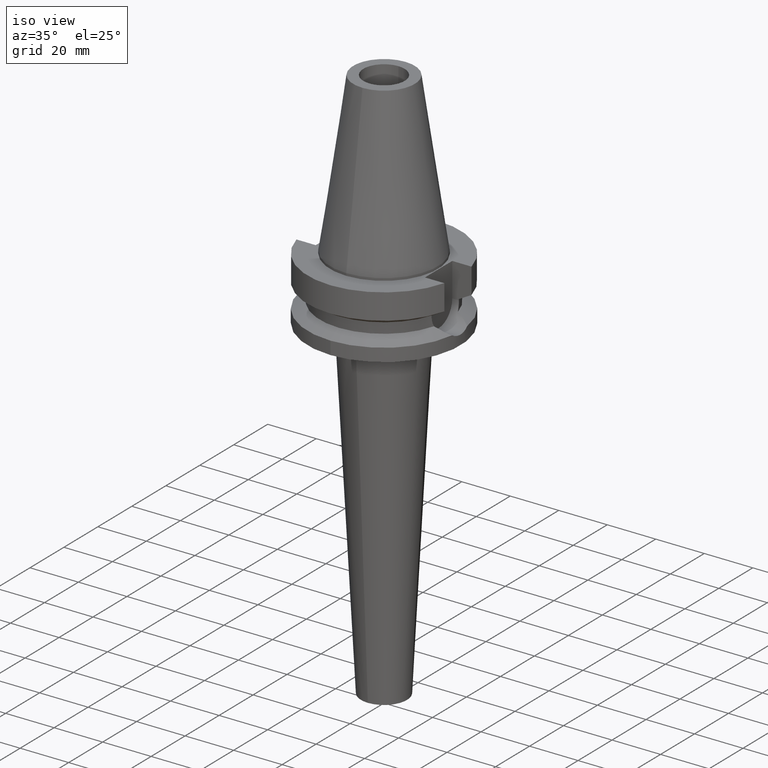
[diagram: clean part render]
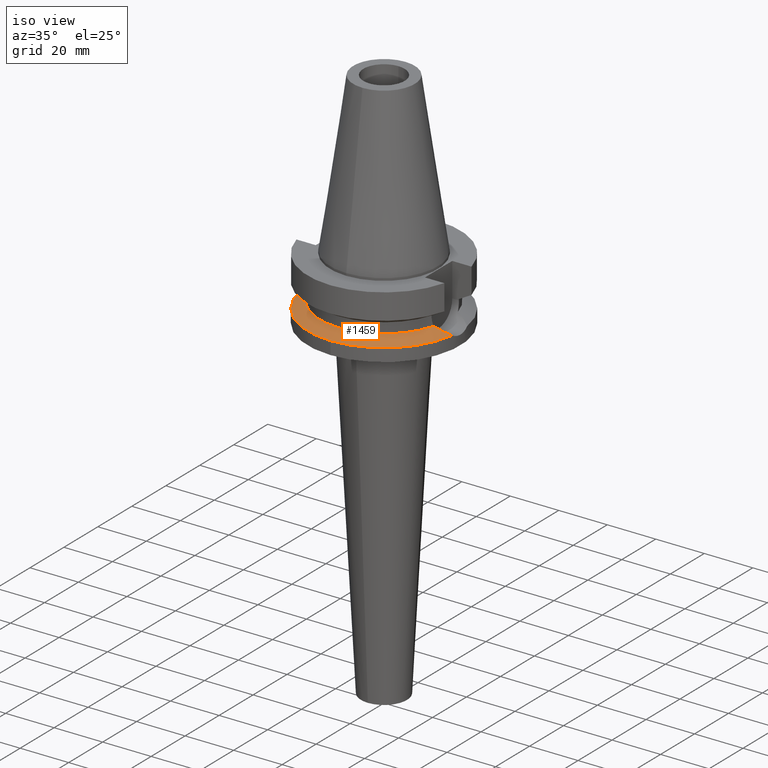
[diagram: same view with one face highlighted and labeled with its STEP entity id]
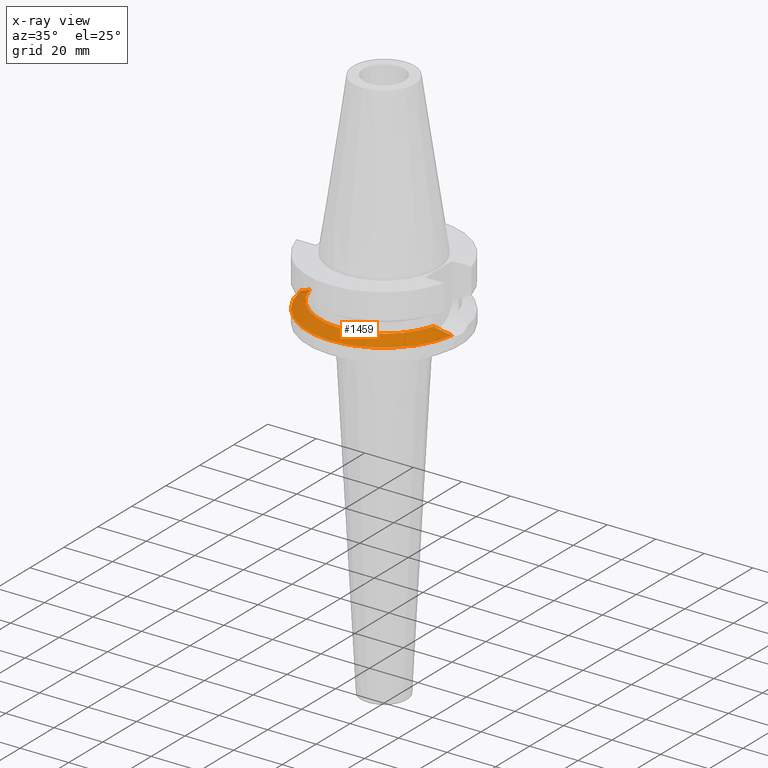
[diagram: x-ray of the same camera — body ghosted, the highlighted face saturated]
A machine part, iso view. The second image highlights one B-rep face of the part: STEP entity #1459.
The next image is the same camera in x-ray: the body ghosted, the highlighted face saturated — about 1% of this face is hidden behind the body in this view.
In plain terms, the highlighted conical surface has half-angle 60 deg.
Its self-contained STEP definition (entity closure, byte-faithful):
#458=CARTESIAN_POINT('',(-3.117899877609E1,-4.485536235554E0,
-2.163449434733E1));
#459=CARTESIAN_POINT('',(-3.064815133973E1,-4.888273541245E0,
-2.136424312350E1));
#460=CARTESIAN_POINT('',(-2.950398691834E1,-5.598495591368E0,
-2.078121719558E1));
#461=CARTESIAN_POINT('',(-2.770371993916E1,-6.418382315570E0,
-1.986169640312E1));
#462=CARTESIAN_POINT('',(-2.628188857633E1,-6.891662484770E0,
-1.913312382116E1));
#463=CARTESIAN_POINT('',(-2.553175183775E1,-7.097862220093E0,
-1.874774300139E1));
#468=CARTESIAN_POINT('',(0.E0,0.E0,-1.874774300139E1));
#469=DIRECTION('',(0.E0,0.E0,1.E0));
#470=DIRECTION('',(-9.634623335001E-1,-2.678438573620E-1,0.E0));
#471=AXIS2_PLACEMENT_3D('',#468,#469,#470);
#476=CARTESIAN_POINT('',(0.E0,0.E0,-1.874774300139E1));
#477=DIRECTION('',(0.E0,0.E0,1.E0));
#478=DIRECTION('',(0.E0,-1.E0,0.E0));
#479=AXIS2_PLACEMENT_3D('',#476,#477,#478);
#484=CARTESIAN_POINT('',(2.553175183775E1,-7.097862220093E0,-1.874774300139E1));
#485=CARTESIAN_POINT('',(2.631972393539E1,-6.881262192899E0,-1.915256163955E1));
#486=CARTESIAN_POINT('',(2.779048512449E1,-6.386654180471E0,-1.990609983735E1));
#487=CARTESIAN_POINT('',(2.960192017576E1,-5.545090232894E0,-2.083115958669E1));
#488=CARTESIAN_POINT('',(3.068667056188E1,-4.859050215139E0,-2.138385302686E1));
#489=CARTESIAN_POINT('',(3.117899877609E1,-4.485536235554E0,-2.163449434733E1));
#494=CARTESIAN_POINT('',(0.E0,0.E0,-2.163449434733E1));
#495=DIRECTION('',(0.E0,0.E0,-1.E0));
#496=DIRECTION('',(9.898094849553E-1,-1.423979757319E-1,0.E0));
#497=AXIS2_PLACEMENT_3D('',#494,#495,#496);
#502=CARTESIAN_POINT('',(0.E0,0.E0,-2.163449434733E1));
#503=DIRECTION('',(0.E0,0.E0,-1.E0));
#504=DIRECTION('',(0.E0,-1.E0,0.E0));
#505=AXIS2_PLACEMENT_3D('',#502,#503,#504);
#524=CARTESIAN_POINT('',(3.117899877609E1,-4.485536235554E0,-2.163449434733E1));
#1024=VERTEX_POINT('',#524);
#1027=CARTESIAN_POINT('',(0.E0,-3.15E1,-2.163449434733E1));
#1028=VERTEX_POINT('',#1027);
#1029=VERTEX_POINT('',#484);
#1040=VERTEX_POINT('',#458);
#1041=VERTEX_POINT('',#463);
#1042=CARTESIAN_POINT('',(0.E0,-2.65E1,-1.874774300139E1));
#1043=VERTEX_POINT('',#1042);
#1443=CARTESIAN_POINT('',(0.E0,0.E0,-2.019111867436E1));
#1444=DIRECTION('',(0.E0,0.E0,-1.E0));
#1445=DIRECTION('',(0.E0,-1.E0,0.E0));
#1446=AXIS2_PLACEMENT_3D('',#1443,#1444,#1445);
#1447=CONICAL_SURFACE('',#1446,2.9E1,6.E1);
#1448=ORIENTED_EDGE('',*,*,#1428,.T.);
#1449=ORIENTED_EDGE('',*,*,#1264,.T.);
#1450=ORIENTED_EDGE('',*,*,#1262,.T.);
#1452=ORIENTED_EDGE('',*,*,#1451,.T.);
#1454=ORIENTED_EDGE('',*,*,#1453,.T.);
#1456=ORIENTED_EDGE('',*,*,#1455,.T.);
#1457=EDGE_LOOP('',(#1448,#1449,#1450,#1452,#1454,#1456));
#1458=FACE_OUTER_BOUND('',#1457,.F.);
#464=B_SPLINE_CURVE_WITH_KNOTS('',3,(#458,#459,#460,#461,#462,#463),
.UNSPECIFIED.,.F.,.F.,(4,1,1,4),(0.E0,3.333333333333E-1,6.666666666667E-1,1.E0),
.UNSPECIFIED.);
#472=CIRCLE('',#471,2.65E1);
#480=CIRCLE('',#479,2.65E1);
#490=B_SPLINE_CURVE_WITH_KNOTS('',3,(#484,#485,#486,#487,#488,#489),
.UNSPECIFIED.,.F.,.F.,(4,1,1,4),(0.E0,3.333333333333E-1,6.666666666667E-1,1.E0),
.UNSPECIFIED.);
#498=CIRCLE('',#497,3.15E1);
#506=CIRCLE('',#505,3.15E1);
#1262=EDGE_CURVE('',#1043,#1029,#480,.T.);
#1264=EDGE_CURVE('',#1041,#1043,#472,.T.);
#1428=EDGE_CURVE('',#1040,#1041,#464,.T.);
#1451=EDGE_CURVE('',#1029,#1024,#490,.T.);
#1453=EDGE_CURVE('',#1024,#1028,#498,.T.);
#1455=EDGE_CURVE('',#1028,#1040,#506,.T.);
#1459=ADVANCED_FACE('',(#1458),#1447,.T.);